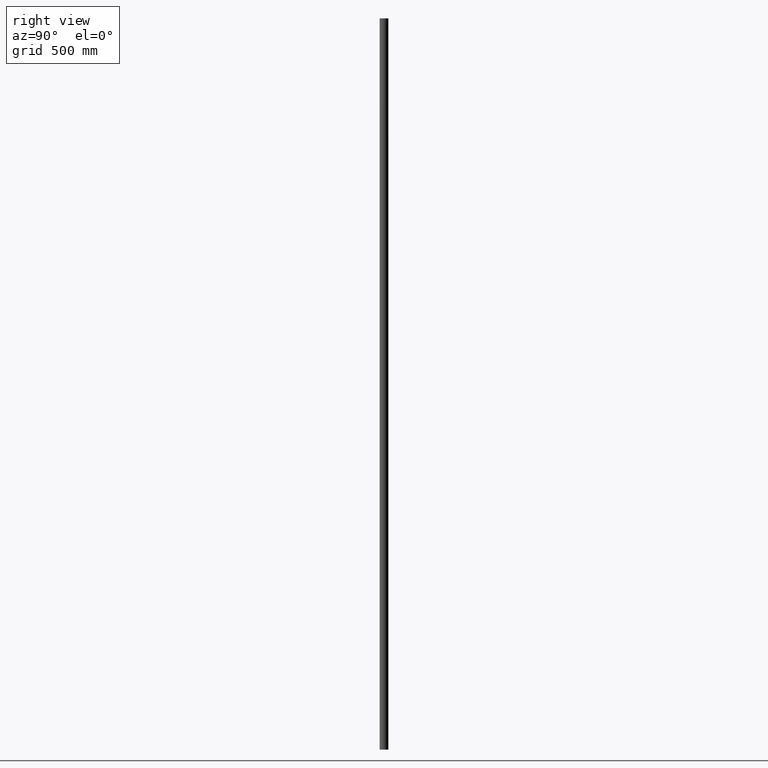
[diagram: clean part render]
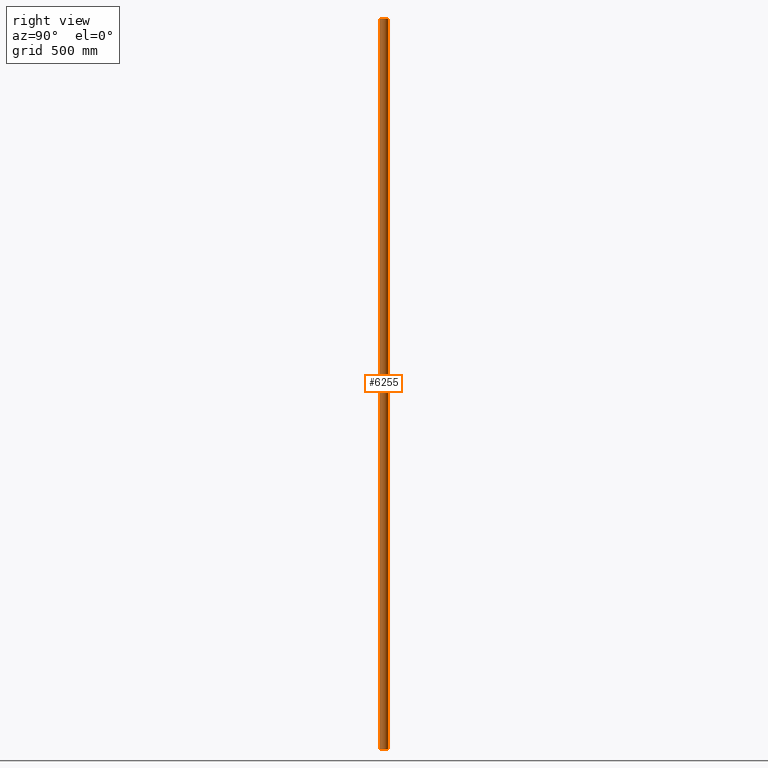
[diagram: same view with one face highlighted and labeled with its STEP entity id]
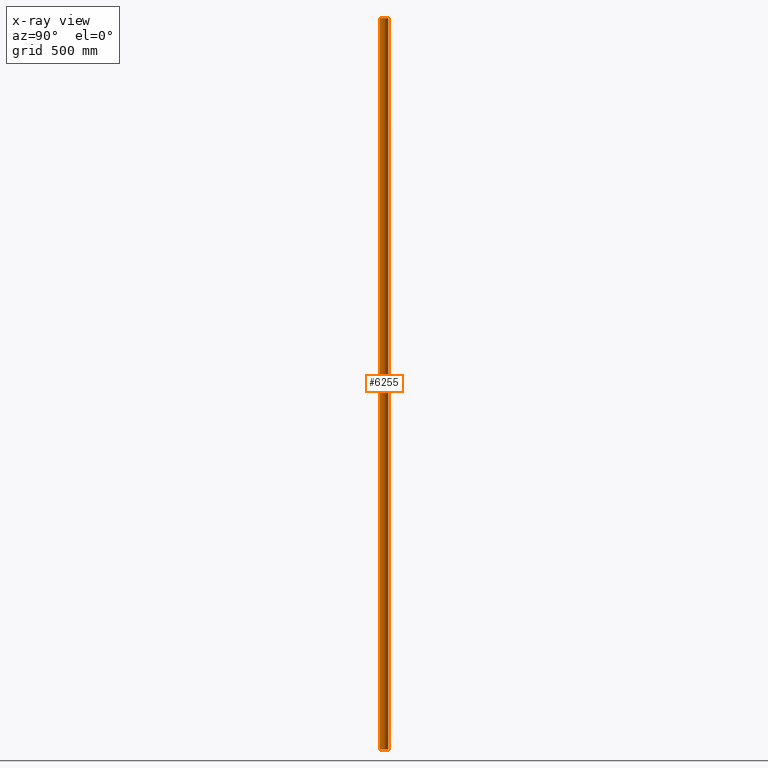
[diagram: x-ray of the same camera — body ghosted, the highlighted face saturated]
A machine part, right view. The second image highlights one B-rep face of the part: STEP entity #6255.
The next image is the same camera in x-ray: the body ghosted, the highlighted face saturated — about 0% of this face is hidden behind the body in this view.
In plain terms, the highlighted cylindrical surface (edge-blend (fillet) strip) has radius 21.2 mm, axis along (0, 0, 1).
Its self-contained STEP definition (entity closure, byte-faithful):
#384 = ORIENTED_EDGE ( 'NONE', *, *, #8224, .T. ) ;
#489 = FACE_OUTER_BOUND ( 'NONE', #16731, .T. ) ;
#832 = DIRECTION ( 'NONE',  ( 1.000000000000000000, 0.000000000000000000, 0.000000000000000000 ) ) ;
#1944 = DIRECTION ( 'NONE',  ( 0.000000000000000000, 0.000000000000000000, 1.000000000000000000 ) ) ;
#2805 = AXIS2_PLACEMENT_3D ( 'NONE', #14337, #1944, #7528 ) ;
#3263 = VECTOR ( 'NONE', #14341, 1000.000000000000000 ) ;
#3275 = CARTESIAN_POINT ( 'NONE',  ( -15.45833333333332682, -0.1608013257614476776, -1500.000000000000000 ) ) ;
#3424 = EDGE_CURVE ( 'NONE', #15107, #5780, #9321, .T. ) ;
#3730 = LINE ( 'NONE', #9941, #13836 ) ;
#4374 = ORIENTED_EDGE ( 'NONE', *, *, #11201, .F. ) ;
#4697 = AXIS2_PLACEMENT_3D ( 'NONE', #6133, #10316, #832 ) ;
#5780 = VERTEX_POINT ( 'NONE', #15473 ) ;
#6133 = CARTESIAN_POINT ( 'NONE',  ( 8.179191214543138373E-16, 14.34712514756876445, -1500.000000000000000 ) ) ;
#6255 = ADVANCED_FACE ( 'NONE', ( #489 ), #10586, .T. ) ;
#6279 = CARTESIAN_POINT ( 'NONE',  ( 15.45833333333333037, -0.1608013257614459568, -1500.000000000000000 ) ) ;
#6489 = CARTESIAN_POINT ( 'NONE',  ( 15.45833333333333037, -0.1608013257614459568, 1500.000000000000000 ) ) ;
#6788 = VERTEX_POINT ( 'NONE', #6279 ) ;
#7528 = DIRECTION ( 'NONE',  ( 1.000000000000000000, 0.000000000000000000, 0.000000000000000000 ) ) ;
#7550 = ORIENTED_EDGE ( 'NONE', *, *, #3424, .F. ) ;
#8224 = EDGE_CURVE ( 'NONE', #15255, #5780, #10549, .T. ) ;
#9321 = CIRCLE ( 'NONE', #11585, 21.19999999999999574 ) ;
#9650 = CIRCLE ( 'NONE', #2805, 21.19999999999999574 ) ;
#9708 = CARTESIAN_POINT ( 'NONE',  ( -15.45833333333332682, -0.1608013257614476776, -1500.000000000000000 ) ) ;
#9941 = CARTESIAN_POINT ( 'NONE',  ( 15.45833333333333037, -0.1608013257614459568, -1500.000000000000000 ) ) ;
#10100 = DIRECTION ( 'NONE',  ( 0.000000000000000000, 0.000000000000000000, 1.000000000000000000 ) ) ;
#10316 = DIRECTION ( 'NONE',  ( 0.000000000000000000, 0.000000000000000000, 1.000000000000000000 ) ) ;
#10420 = ORIENTED_EDGE ( 'NONE', *, *, #14320, .T. ) ;
#10549 = LINE ( 'NONE', #3275, #3263 ) ;
#10586 = CYLINDRICAL_SURFACE ( 'NONE', #4697, 21.19999999999999574 ) ;
#11201 = EDGE_CURVE ( 'NONE', #6788, #15107, #3730, .T. ) ;
#11256 = CARTESIAN_POINT ( 'NONE',  ( 8.179191214543138373E-16, 14.34712514756876445, 1500.000000000000000 ) ) ;
#11585 = AXIS2_PLACEMENT_3D ( 'NONE', #11256, #10100, #11617 ) ;
#11617 = DIRECTION ( 'NONE',  ( 1.000000000000000000, 0.000000000000000000, 0.000000000000000000 ) ) ;
#13836 = VECTOR ( 'NONE', #16996, 1000.000000000000000 ) ;
#14320 = EDGE_CURVE ( 'NONE', #6788, #15255, #9650, .T. ) ;
#14337 = CARTESIAN_POINT ( 'NONE',  ( 8.179191214543138373E-16, 14.34712514756876445, -1500.000000000000000 ) ) ;
#14341 = DIRECTION ( 'NONE',  ( 0.000000000000000000, 0.000000000000000000, 1.000000000000000000 ) ) ;
#15107 = VERTEX_POINT ( 'NONE', #6489 ) ;
#15255 = VERTEX_POINT ( 'NONE', #9708 ) ;
#15473 = CARTESIAN_POINT ( 'NONE',  ( -15.45833333333332682, -0.1608013257614476776, 1500.000000000000000 ) ) ;
#16731 = EDGE_LOOP ( 'NONE', ( #7550, #4374, #10420, #384 ) ) ;
#16996 = DIRECTION ( 'NONE',  ( 0.000000000000000000, 0.000000000000000000, 1.000000000000000000 ) ) ;